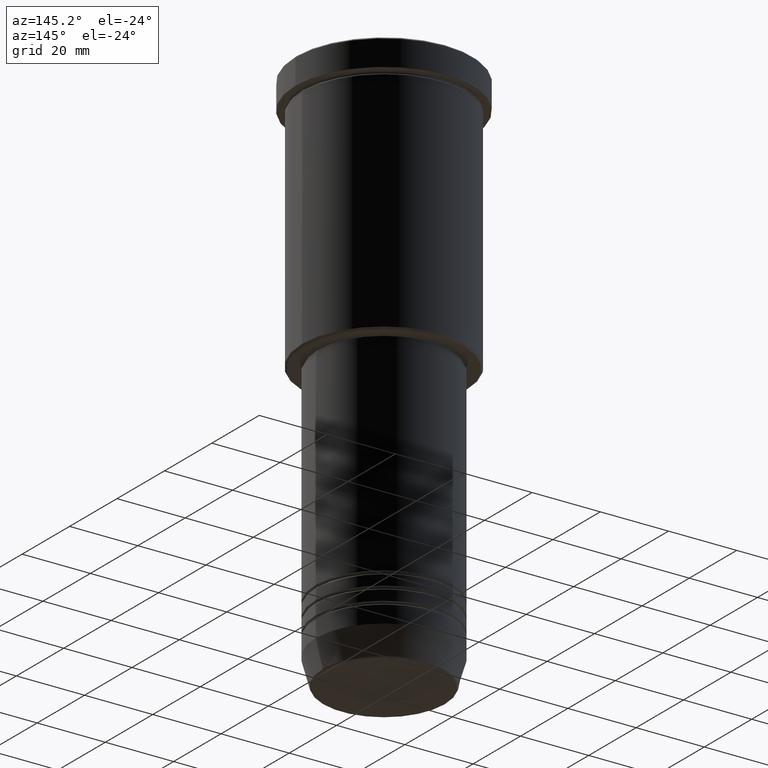
[diagram: clean part render]
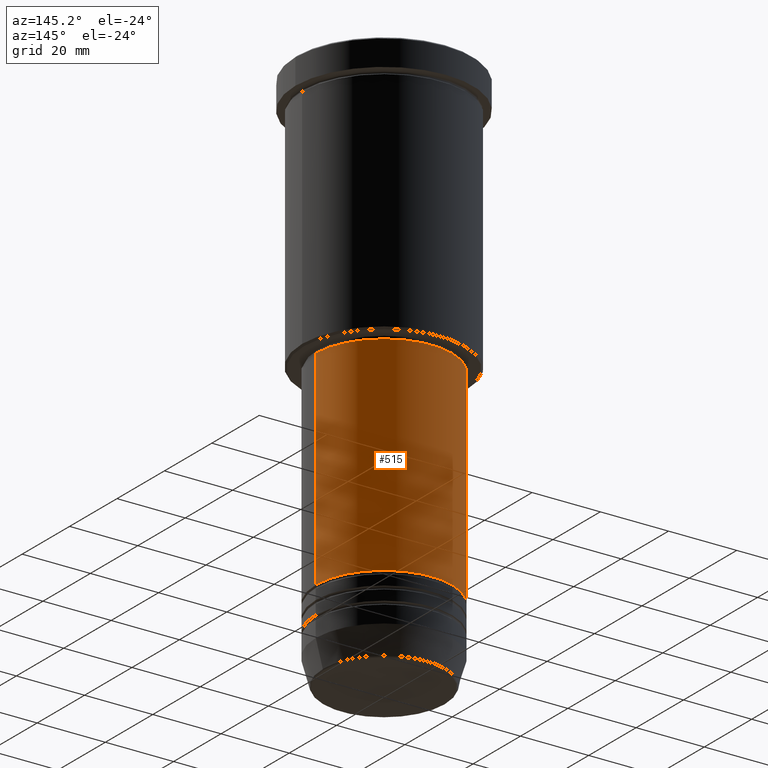
[diagram: same view with one face highlighted and labeled with its STEP entity id]
A machine part, auxiliary view. The second image highlights one B-rep face of the part: STEP entity #515.
In plain terms, the highlighted cylindrical surface (partial cylindrical patch) has radius 20 mm, axis along (-0, -0, 1).
Its self-contained STEP definition (entity closure, byte-faithful):
#21 = CYLINDRICAL_SURFACE ( 'NONE', #137, 20.00000000000000355 ) ;
#137 = AXIS2_PLACEMENT_3D ( 'NONE', #1101, #373, #1116 ) ;
#169 = CARTESIAN_POINT ( 'NONE',  ( 0.000000000000000000, 0.000000000000000000, -137.9999999999999716 ) ) ;
#210 = ORIENTED_EDGE ( 'NONE', *, *, #862, .T. ) ;
#215 = VERTEX_POINT ( 'NONE', #474 ) ;
#217 = AXIS2_PLACEMENT_3D ( 'NONE', #169, #816, #910 ) ;
#221 = EDGE_CURVE ( 'NONE', #789, #215, #517, .T. ) ;
#268 = EDGE_LOOP ( 'NONE', ( #476, #210, #984, #738 ) ) ;
#306 = CARTESIAN_POINT ( 'NONE',  ( 20.00000000000000355, 0.000000000000000000, -77.00000000000004263 ) ) ;
#320 = VERTEX_POINT ( 'NONE', #657 ) ;
#362 = LINE ( 'NONE', #640, #580 ) ;
#373 = DIRECTION ( 'NONE',  ( -0.000000000000000000, -0.000000000000000000, 1.000000000000000000 ) ) ;
#376 = CARTESIAN_POINT ( 'NONE',  ( -20.00000000000000355, 2.449293598294706907E-15, 0.000000000000000000 ) ) ;
#378 = DIRECTION ( 'NONE',  ( -0.000000000000000000, -0.000000000000000000, 1.000000000000000000 ) ) ;
#392 = DIRECTION ( 'NONE',  ( -0.000000000000000000, -0.000000000000000000, 1.000000000000000000 ) ) ;
#400 = VERTEX_POINT ( 'NONE', #700 ) ;
#404 = DIRECTION ( 'NONE',  ( -0.000000000000000000, -0.000000000000000000, 1.000000000000000000 ) ) ;
#474 = CARTESIAN_POINT ( 'NONE',  ( -20.00000000000000355, 2.449293598294706907E-15, -77.00000000000004263 ) ) ;
#476 = ORIENTED_EDGE ( 'NONE', *, *, #684, .T. ) ;
#483 = VECTOR ( 'NONE', #392, 1000.000000000000000 ) ;
#515 = ADVANCED_FACE ( 'NONE', ( #935 ), #21, .T. ) ;
#517 = CIRCLE ( 'NONE', #1166, 20.00000000000000355 ) ;
#580 = VECTOR ( 'NONE', #378, 1000.000000000000000 ) ;
#624 = EDGE_CURVE ( 'NONE', #400, #789, #362, .T. ) ;
#640 = CARTESIAN_POINT ( 'NONE',  ( 20.00000000000000355, 0.000000000000000000, 0.000000000000000000 ) ) ;
#657 = CARTESIAN_POINT ( 'NONE',  ( -20.00000000000000355, 2.449293598294706907E-15, -137.9999999999999716 ) ) ;
#684 = EDGE_CURVE ( 'NONE', #400, #320, #976, .T. ) ;
#700 = CARTESIAN_POINT ( 'NONE',  ( 20.00000000000000355, 0.000000000000000000, -137.9999999999999716 ) ) ;
#738 = ORIENTED_EDGE ( 'NONE', *, *, #624, .F. ) ;
#756 = CARTESIAN_POINT ( 'NONE',  ( 0.000000000000000000, 0.000000000000000000, -77.00000000000004263 ) ) ;
#789 = VERTEX_POINT ( 'NONE', #306 ) ;
#816 = DIRECTION ( 'NONE',  ( -0.000000000000000000, -0.000000000000000000, 1.000000000000000000 ) ) ;
#862 = EDGE_CURVE ( 'NONE', #320, #215, #1104, .T. ) ;
#910 = DIRECTION ( 'NONE',  ( 1.000000000000000000, 0.000000000000000000, 0.000000000000000000 ) ) ;
#932 = DIRECTION ( 'NONE',  ( 1.000000000000000000, 0.000000000000000000, 0.000000000000000000 ) ) ;
#935 = FACE_OUTER_BOUND ( 'NONE', #268, .T. ) ;
#976 = CIRCLE ( 'NONE', #217, 20.00000000000000355 ) ;
#984 = ORIENTED_EDGE ( 'NONE', *, *, #221, .F. ) ;
#1101 = CARTESIAN_POINT ( 'NONE',  ( 0.000000000000000000, 0.000000000000000000, 0.000000000000000000 ) ) ;
#1104 = LINE ( 'NONE', #376, #483 ) ;
#1116 = DIRECTION ( 'NONE',  ( 1.000000000000000000, 0.000000000000000000, 0.000000000000000000 ) ) ;
#1166 = AXIS2_PLACEMENT_3D ( 'NONE', #756, #404, #932 ) ;